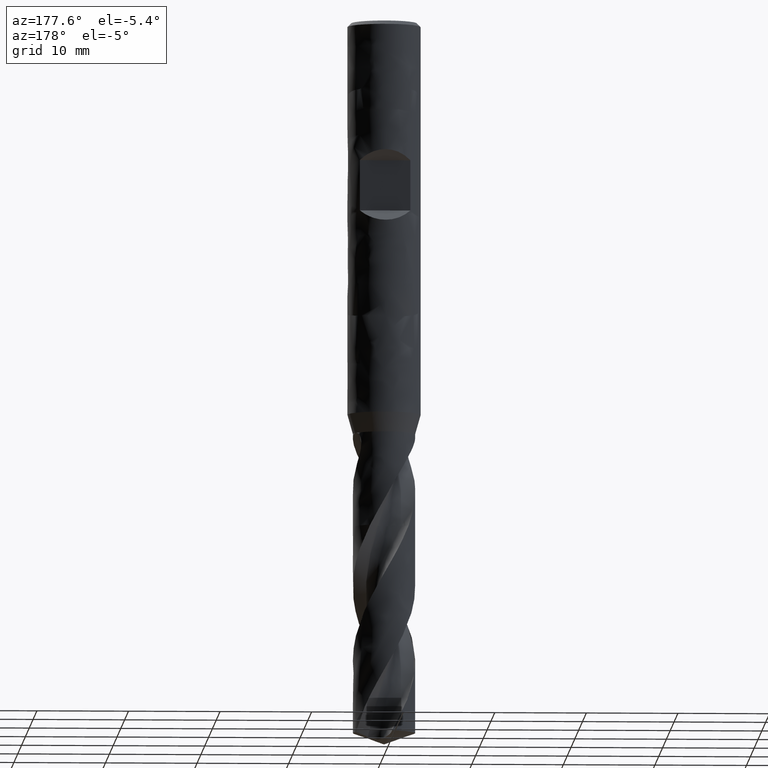
[diagram: clean part render]
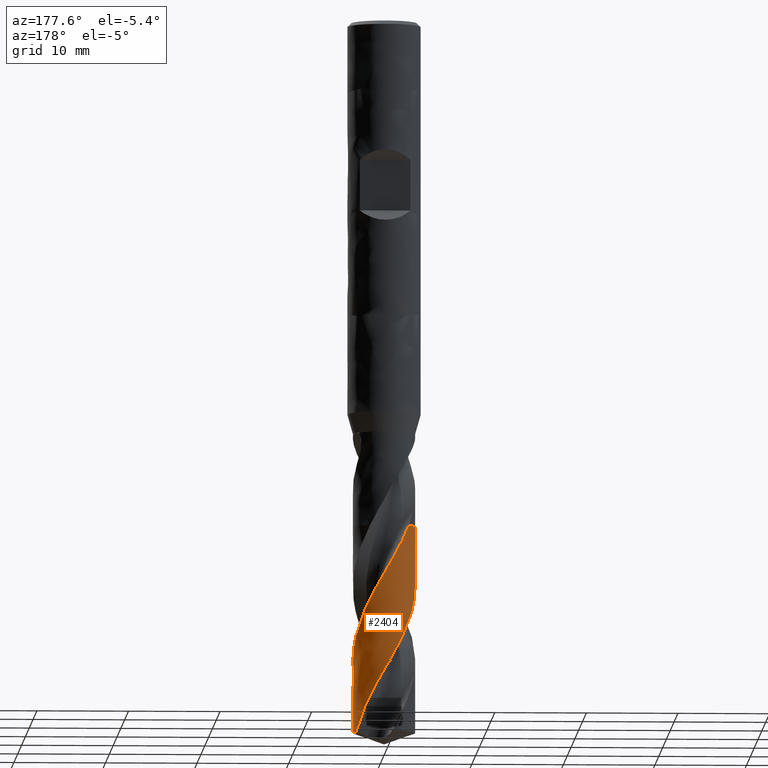
[diagram: same view with one face highlighted and labeled with its STEP entity id]
A machine part, auxiliary view. The second image highlights one B-rep face of the part: STEP entity #2404.
In plain terms, the highlighted face is a freeform B-spline surface patch.
Its self-contained STEP definition (entity closure, byte-faithful):
#1899 = VERTEX_POINT('', #1900);
#1900 = CARTESIAN_POINT('', (-3.4, 3.58821512150174E-15, -55.2));
#2005 = VERTEX_POINT('', #2006);
#2006 = CARTESIAN_POINT('', (-2.5948366004809, 2.19700318998511, -55.2));
#2076 = EDGE_CURVE('', #1899, #2005, #2077, .T.);
#2077 = CIRCLE('', #2078, 3.4);
#2078 = AXIS2_PLACEMENT_3D('', #2079, #2080, #2081);
#2079 = CARTESIAN_POINT('', (2.06966850007336E-31, 3.3800251656467E-15, -55.2));
#2080 = DIRECTION('', (3.74939945665464E-33, 6.12323399573677E-17, -1.));
#2081 = DIRECTION('', (-1., 6.12323399573677E-17, 0.));
#2093 = VERTEX_POINT('', #2094);
#2094 = CARTESIAN_POINT('', (-3.4, 3.97619611698886E-15, -61.5362105017911));
#2134 = EDGE_CURVE('', #2135, #2093, #2137, .T.);
#2135 = VERTEX_POINT('', #2136);
#2136 = CARTESIAN_POINT('', (3.1064099180173, 1.38210615411543, -77.7625012034949));
#2137 = B_SPLINE_CURVE_WITH_KNOTS('', 3, (#2138, #2139, #2140, #2141, #2142, #2143, #2144, #2145, #2146, #2147, #2148, #2149, #2150, #2151, #2152, #2153, #2154, #2155, #2156, #2157, #2158, #2159, #2160, #2161, #2162, #2163, #2164, #2165, #2166, #2167, #2168, #2169, #2170, #2171, #2172, #2173, #2174, #2175, #2176, #2177, #2178, #2179, #2180, #2181, #2182, #2183, #2184, #2185, #2186, #2187, #2188, #2189, #2190, #2191, #2192, #2193, #2194, #2195, #2196, #2197, #2198, #2199, #2200, #2201, #2202, #2203, #2204, #2205, #2206, #2207, #2208, #2209, #2210, #2211, #2212, #2213, #2214, #2215, #2216, #2217, #2218, #2219, #2220, #2221, #2222, #2223, #2224, #2225, #2226, #2227, #2228, #2229, #2230, #2231), .UNSPECIFIED., .F., .U., (4, 3, 3, 3, 3, 3, 3, 3, 3, 3, 3, 3, 3, 3, 3, 3, 3, 3, 3, 3, 3, 3, 3, 3, 3, 3, 3, 3, 3, 3, 3, 4), (0., 0.665660850593775, 1.33112510738442, 1.9963960021183, 2.66147587864301, 3.32636617980339, 3.99106742414364, 4.65557924434695, 5.31990037242203, 5.98402861825828, 6.64796082906768, 7.3116928290033, 7.75439502943726, 7.88570074054605, 7.94407962779482, 8.61065969756747, 9.27701310527935, 9.94314856492784, 10.6090733076717, 11.2747932472377, 11.9403131092594, 12.6056365308782, 13.2707661352571, 13.9357035843576, 14.6004496122965, 15.2650040407352, 15.9293657770223, 16.5935327989156, 17.2575021583176, 17.9212699087829, 18.5848310161772, 18.6799359911957), .UNSPECIFIED.);
#2138 = CARTESIAN_POINT('', (3.10640991801731, 1.38210615411542, -77.7625012034949));
#2139 = CARTESIAN_POINT('', (3.06183161597814, 1.48229996279684, -77.5696079834032));
#2140 = CARTESIAN_POINT('', (3.01238327933041, 1.58037263218199, -77.3766655642521));
#2141 = CARTESIAN_POINT('', (2.95832147716959, 1.67580847286233, -77.1837844077621));
#2142 = CARTESIAN_POINT('', (2.90427564142061, 1.77121612787597, -76.9909602160765));
#2143 = CARTESIAN_POINT('', (2.8455884951512, 1.86404248558441, -76.7980868116164));
#2144 = CARTESIAN_POINT('', (2.78256497221912, 1.95379942045728, -76.6052748044808));
#2145 = CARTESIAN_POINT('', (2.71955976185289, 2.04353027491282, -76.4125188221818));
#2146 = CARTESIAN_POINT('', (2.65218543106488, 2.13024374003034, -76.2197134118104));
#2147 = CARTESIAN_POINT('', (2.58079216804039, 2.21348408292931, -76.0269695434372));
#2148 = CARTESIAN_POINT('', (2.50941940405376, 2.29670052515659, -75.8342810173146));
#2149 = CARTESIAN_POINT('', (2.43399028822337, 2.37649215784475, -75.6415430116195));
#2150 = CARTESIAN_POINT('', (2.35489721939434, 2.45243941537581, -75.4488665565657));
#2151 = CARTESIAN_POINT('', (2.27582669537213, 2.5283650247868, -75.2562450222974));
#2152 = CARTESIAN_POINT('', (2.19305026456807, 2.60049072706229, -75.0635740448302));
#2153 = CARTESIAN_POINT('', (2.10699903966372, 2.66843681710027, -74.8709645514544));
#2154 = CARTESIAN_POINT('', (2.02097228281209, 2.73636358715163, -74.6784098252159));
#2155 = CARTESIAN_POINT('', (1.9316244484355, 2.80015111480684, -74.4858057611602));
#2156 = CARTESIAN_POINT('', (1.83942152201864, 2.85946296782012, -74.2932630489295));
#2157 = CARTESIAN_POINT('', (1.74724487125557, 2.91875791835779, -74.100775206819));
#2158 = CARTESIAN_POINT('', (1.65216276593215, 2.97361316236926, -73.9082381756776));
#2159 = CARTESIAN_POINT('', (1.55467184555884, 3.02373865481571, -73.7157623306546));
#2160 = CARTESIAN_POINT('', (1.45720890173993, 3.07384976296298, -73.5233417196055));
#2161 = CARTESIAN_POINT('', (1.35728305233256, 3.11926232912474, -73.3308720859043));
#2162 = CARTESIAN_POINT('', (1.25541701960612, 3.15973544887596, -73.138463463207));
#2163 = CARTESIAN_POINT('', (1.15358056316081, 3.20019681746405, -72.9461107053683));
#2164 = CARTESIAN_POINT('', (1.04974657035236, 3.23574481940343, -72.7537090797695));
#2165 = CARTESIAN_POINT('', (0.94445892982319, 3.26619003272582, -72.5613683108331));
#2166 = CARTESIAN_POINT('', (0.839202367727392, 3.29662625933781, -72.3690843163646));
#2167 = CARTESIAN_POINT('', (0.732432145456553, 3.3219802941041, -72.176751567795));
#2168 = CARTESIAN_POINT('', (0.624708087051406, 3.34211606710078, -71.9844795725125));
#2169 = CARTESIAN_POINT('', (0.517016513179331, 3.36224576809095, -71.7922655574629));
#2170 = CARTESIAN_POINT('', (0.40830918069043, 3.37717202900525, -71.6000028285237));
#2171 = CARTESIAN_POINT('', (0.299156337707267, 3.3868134707437, -71.407800833226));
#2172 = CARTESIAN_POINT('', (0.226352549767322, 3.39324421006828, -71.2796041420098));
#2173 = CARTESIAN_POINT('', (0.153327291185846, 3.39732746318454, -71.1513938110713));
#2174 = CARTESIAN_POINT('', (0.0802507996988821, 3.39905278116534, -71.0232025974283));
#2175 = CARTESIAN_POINT('', (0.0585762729614383, 3.39956451140778, -70.985181014412));
#2176 = CARTESIAN_POINT('', (0.0368961937599292, 3.39986893171991, -70.9471592408828));
#2177 = CARTESIAN_POINT('', (0.0152150366301777, 3.39996595610315, -70.9091381182799));
#2178 = CARTESIAN_POINT('', (0.0055755333914193, 3.40000909341592, -70.8922338205859));
#2179 = CARTESIAN_POINT('', (-0.00406425230930882, 3.40001123625907, -70.8753295296395));
#2180 = CARTESIAN_POINT('', (-0.013703926843714, 3.39997238259211, -70.8584253192377));
#2181 = CARTESIAN_POINT('', (-0.123771371198177, 3.39952874481052, -70.6654101680398));
#2182 = CARTESIAN_POINT('', (-0.233859507864194, 3.39373385365256, -70.4723451748769));
#2183 = CARTESIAN_POINT('', (-0.343386286615723, 3.38261523945079, -70.2793421985587));
#2184 = CARTESIAN_POINT('', (-0.452875822181462, 3.37150040599214, -70.0864048504439));
#2185 = CARTESIAN_POINT('', (-0.561866807061262, 3.35505914581792, -69.893417500651));
#2186 = CARTESIAN_POINT('', (-0.669783382635566, 3.33337519945557, -69.7004922887027));
#2187 = CARTESIAN_POINT('', (-0.777664661311285, 3.31169834538697, -69.5076301779195));
#2188 = CARTESIAN_POINT('', (-0.884533364065541, 3.28476995422193, -69.314717995213));
#2189 = CARTESIAN_POINT('', (-0.989824904818471, 3.25272910919449, -69.1218679867541));
#2190 = CARTESIAN_POINT('', (-1.09508313897103, 3.22069839956456, -68.9290789820389));
#2191 = CARTESIAN_POINT('', (-1.19882475787251, 3.18354034328834, -68.7362399100765));
#2192 = CARTESIAN_POINT('', (-1.30050148470655, 3.14144805595701, -68.5434629790839));
#2193 = CARTESIAN_POINT('', (-1.40214694116508, 3.09936871398371, -68.3507453360642));
#2194 = CARTESIAN_POINT('', (-1.50178640189643, 3.05233430632342, -68.157977689429));
#2195 = CARTESIAN_POINT('', (-1.5988928560285, 3.00059021443133, -67.9652720971625));
#2196 = CARTESIAN_POINT('', (-1.69597012548436, 2.9488616738698, -67.7726244212349));
#2197 = CARTESIAN_POINT('', (-1.79057121368545, 2.89239679216217, -67.5799268468451));
#2198 = CARTESIAN_POINT('', (-1.88219521150828, 2.83149098281724, -67.3872912047512));
#2199 = CARTESIAN_POINT('', (-1.97379216482639, 2.77060315093985, -67.1947124226029));
#2200 = CARTESIAN_POINT('', (-2.06246630543165, 2.70524207782772, -67.0020838697007));
#2201 = CARTESIAN_POINT('', (-2.14774749497664, 2.63575049991868, -66.809517110962));
#2202 = CARTESIAN_POINT('', (-2.23300384101809, 2.56627916579694, -66.6170064493882));
#2203 = CARTESIAN_POINT('', (-2.31491844081511, 2.4926395950828, -66.4244461467464));
#2204 = CARTESIAN_POINT('', (-2.39305637818993, 2.41521865900471, -66.23194750513));
#2205 = CARTESIAN_POINT('', (-2.47117174159269, 2.33782008975772, -66.0395044761788));
#2206 = CARTESIAN_POINT('', (-2.54555801555446, 2.2565973423914, -65.8470119155429));
#2207 = CARTESIAN_POINT('', (-2.61581968431555, 2.17197775751671, -65.6545809105788));
#2208 = CARTESIAN_POINT('', (-2.6860611262564, 2.08738253279688, -65.4622053023541));
#2209 = CARTESIAN_POINT('', (-2.75222133303045, 1.99934303634025, -65.2697802274339));
#2210 = CARTESIAN_POINT('', (-2.81394803473436, 1.90832294379506, -65.0774166552561));
#2211 = CARTESIAN_POINT('', (-2.87565694497402, 1.81732908593725, -64.8851085279592));
#2212 = CARTESIAN_POINT('', (-2.93297096242149, 1.72330317774639, -64.6927509285373));
#2213 = CARTESIAN_POINT('', (-2.98558451254, 1.62674064265983, -64.5004548579668));
#2214 = CARTESIAN_POINT('', (-3.03818280699585, 1.530206106548, -64.3082145449716));
#2215 = CARTESIAN_POINT('', (-3.08611398688788, 1.43108022241581, -64.1159246589198));
#2216 = CARTESIAN_POINT('', (-3.12912215481455, 1.32988516054913, -63.9236964296508));
#2217 = CARTESIAN_POINT('', (-3.17211771769659, 1.22871975742714, -63.7315245395734));
#2218 = CARTESIAN_POINT('', (-3.21021798828816, 1.12542799140658, -63.5393029127692));
#2219 = CARTESIAN_POINT('', (-3.2432191099923, 1.02055367550215, -63.347143092874));
#2220 = CARTESIAN_POINT('', (-3.27621041024533, 0.91571057120245, -63.1550404615888));
#2221 = CARTESIAN_POINT('', (-3.30412450098908, 0.809225809701026, -62.9628879725936));
#2222 = CARTESIAN_POINT('', (-3.32681130661358, 0.701659839372683, -62.7707973839741));
#2223 = CARTESIAN_POINT('', (-3.34949122357268, 0.59412653058301, -62.5787651221114));
#2224 = CARTESIAN_POINT('', (-3.36695996255426, 0.485451354113163, -62.386682949999));
#2225 = CARTESIAN_POINT('', (-3.37912249140341, 0.376206310543512, -62.1946627060765));
#2226 = CARTESIAN_POINT('', (-3.39128123383433, 0.266995276958937, -62.0027022415765));
#2227 = CARTESIAN_POINT('', (-3.39814398947359, 0.157152528569606, -61.8106918731783));
#2228 = CARTESIAN_POINT('', (-3.39967157703927, 0.0472564098712073, -61.6187434051552));
#2229 = CARTESIAN_POINT('', (-3.39989051870968, 0.031505535525232, -61.5912323680363));
#2230 = CARTESIAN_POINT('', (-3.4, 0.0157528276524735, -61.5637212917184));
#2231 = CARTESIAN_POINT('', (-3.4, 3.54273208842916E-15, -61.5362105017911));
#2391 = EDGE_CURVE('', #1899, #2093, #2392, .T.);
#2392 = LINE('', #2393, #2394);
#2393 = CARTESIAN_POINT('', (-3.4, 3.58821512150174E-15, -55.2));
#2394 = VECTOR('', #2395, 6.33621050179107);
#2395 = DIRECTION('', (0., 3.87980995487115E-16, -6.33621050179107));
#2404 = ADVANCED_FACE('', (#2405), #2567, .T.);
#2405 = FACE_OUTER_BOUND('', #2406, .T.);
#2406 = EDGE_LOOP('', (#2407, #2408, #2426, #2546, #2558, #2565, #2566));
#2407 = ORIENTED_EDGE('', *, *, #2076, .T.);
#2408 = ORIENTED_EDGE('', *, *, #2409, .T.);
#2409 = EDGE_CURVE('', #2005, #2410, #2412, .T.);
#2410 = VERTEX_POINT('', #2411);
#2411 = CARTESIAN_POINT('', (-1.87108266375298, 2.83884653783946, -56.8851368251366));
#2412 = B_SPLINE_CURVE_WITH_KNOTS('', 3, (#2413, #2414, #2415, #2416, #2417, #2418, #2419, #2420, #2421, #2422, #2423, #2424, #2425), .UNSPECIFIED., .F., .U., (4, 3, 3, 3, 4), (4.111886611985, 4.63316963323046, 5.29811036083241, 5.96285269902851, 6.05639502507479), .UNSPECIFIED.);
#2413 = CARTESIAN_POINT('', (-2.5948366004809, 2.19700318998511, -55.2));
#2414 = CARTESIAN_POINT('', (-2.53877048965558, 2.26322175401785, -55.3505476023604));
#2415 = CARTESIAN_POINT('', (-2.48016059422177, 2.32730044493621, -55.5011559742758));
#2416 = CARTESIAN_POINT('', (-2.41921206573172, 2.38901925086804, -55.6517180991656));
#2417 = CARTESIAN_POINT('', (-2.341467045793, 2.46774682504642, -55.8437728655655));
#2418 = CARTESIAN_POINT('', (-2.25985633225443, 2.54269283708498, -56.0358886827877));
#2419 = CARTESIAN_POINT('', (-2.1748243471054, 2.61345347370822, -56.2279559787141));
#2420 = CARTESIAN_POINT('', (-2.08981773180412, 2.6841929984337, -56.4199659701093));
#2421 = CARTESIAN_POINT('', (-2.00134241162865, 2.75079112333219, -56.6120416575551));
#2422 = CARTESIAN_POINT('', (-1.90987465769216, 2.8128950908104, -56.8040697518856));
#2423 = CARTESIAN_POINT('', (-1.89700334504994, 2.82163434095412, -56.8310918829848));
#2424 = CARTESIAN_POINT('', (-1.88407222531323, 2.83028512279952, -56.858114349041));
#2425 = CARTESIAN_POINT('', (-1.871082663753, 2.83884653783944, -56.8851368251366));
#2426 = ORIENTED_EDGE('', *, *, #2427, .T.);
#2427 = EDGE_CURVE('', #2410, #2428, #2430, .T.);
#2428 = VERTEX_POINT('', #2429);
#2429 = CARTESIAN_POINT('', (1.37929536291788, -3.10765897450692, -76.564015484619));
#2430 = B_SPLINE_CURVE_WITH_KNOTS('', 3, (#2431, #2432, #2433, #2434, #2435, #2436, #2437, #2438, #2439, #2440, #2441, #2442, #2443, #2444, #2445, #2446, #2447, #2448, #2449, #2450, #2451, #2452, #2453, #2454, #2455, #2456, #2457, #2458, #2459, #2460, #2461, #2462, #2463, #2464, #2465, #2466, #2467, #2468, #2469, #2470, #2471, #2472, #2473, #2474, #2475, #2476, #2477, #2478, #2479, #2480, #2481, #2482, #2483, #2484, #2485, #2486, #2487, #2488, #2489, #2490, #2491, #2492, #2493, #2494, #2495, #2496, #2497, #2498, #2499, #2500, #2501, #2502, #2503, #2504, #2505, #2506, #2507, #2508, #2509, #2510, #2511, #2512, #2513, #2514, #2515, #2516, #2517, #2518, #2519, #2520, #2521, #2522, #2523, #2524, #2525, #2526, #2527, #2528, #2529, #2530, #2531, #2532, #2533, #2534, #2535, #2536, #2537, #2538, #2539, #2540, #2541, #2542, #2543, #2544, #2545), .UNSPECIFIED., .F., .U., (4, 3, 3, 3, 3, 3, 3, 3, 3, 3, 3, 3, 3, 3, 3, 3, 3, 3, 3, 3, 3, 3, 3, 3, 3, 3, 3, 3, 3, 3, 3, 3, 3, 3, 3, 3, 3, 3, 4), (0., 0.664517569612129, 1.32883934064411, 1.99296424585513, 2.65688979629493, 3.32061257264089, 3.7633103220963, 3.96022043690759, 3.99914309254175, 4.66574649248883, 5.33211673485312, 5.99826354100053, 6.66419504285603, 7.32991796793358, 7.99543780864122, 8.6607589842641, 9.3258848698914, 9.99081785500437, 10.6555593869496, 11.3201099958687, 11.984469302121, 12.648636006513, 13.3126078629495, 13.9763816324021, 14.6399530162831, 14.7275037392374, 14.8151085398668, 15.4816662083509, 16.1479965204634, 16.8141087930603, 17.4800108279027, 18.1457091073211, 18.811208935305, 19.4765145277111, 20.1416290940811, 20.8065548998648, 21.4712933000924, 22.1358447868642, 22.6618337397321), .UNSPECIFIED.);
#2431 = CARTESIAN_POINT('', (-1.87108266375298, 2.83884653783946, -56.8851368251366));
#2432 = CARTESIAN_POINT('', (-1.77880580638621, 2.89966617912094, -57.0771024400505));
#2433 = CARTESIAN_POINT('', (-1.68354761538601, 2.95598939816568, -57.2691349320367));
#2434 = CARTESIAN_POINT('', (-1.58582066690146, 3.00751937856238, -57.4611217783064));
#2435 = CARTESIAN_POINT('', (-1.48812251343847, 3.05903417576836, -57.6530520560914));
#2436 = CARTESIAN_POINT('', (-1.38789875452359, 3.10578934538316, -57.8450494571969));
#2437 = CARTESIAN_POINT('', (-1.28568683640835, 3.14754020763617, -58.0370013374905));
#2438 = CARTESIAN_POINT('', (-1.18350520788176, 3.1892786973942, -58.2288963345595));
#2439 = CARTESIAN_POINT('', (-1.07927577150082, 3.2260407265314, -58.4208583672021));
#2440 = CARTESIAN_POINT('', (-0.973555723651048, 3.2576355310173, -58.6127747980981));
#2441 = CARTESIAN_POINT('', (-0.867867410488211, 3.28922085148149, -58.804633620168));
#2442 = CARTESIAN_POINT('', (-0.760627187683645, 3.31566067476134, -58.9965595173379));
#2443 = CARTESIAN_POINT('', (-0.652406469280312, 3.33681971326612, -59.1884397685674));
#2444 = CARTESIAN_POINT('', (-0.544218803315, 3.35797228944261, -59.3802614163225));
#2445 = CARTESIAN_POINT('', (-0.434988267554942, 3.37385965916352, -59.572150186932));
#2446 = CARTESIAN_POINT('', (-0.325294913164686, 3.38440293397071, -59.7639932333328));
#2447 = CARTESIAN_POINT('', (-0.252130328718563, 3.39143521340329, -59.8919510011193));
#2448 = CARTESIAN_POINT('', (-0.178736748865084, 3.39609382001814, -60.0199304466262));
#2449 = CARTESIAN_POINT('', (-0.105286892264187, 3.39836941345661, -60.1478977860058));
#2450 = CARTESIAN_POINT('', (-0.0726167020182501, 3.3993815879386, -60.2048171254882));
#2451 = CARTESIAN_POINT('', (-0.0399326450043072, 3.39992257827349, -60.2617388352074));
#2452 = CARTESIAN_POINT('', (-0.0072500879754861, 3.39999227002421, -60.3186600319984));
#2453 = CARTESIAN_POINT('', (-0.000789820996842516, 3.40000604579198, -60.3299114811334));
#2454 = CARTESIAN_POINT('', (0.00567042694165672, 3.40000140879631, -60.3411629788093));
#2455 = CARTESIAN_POINT('', (0.0121305374149537, 3.39997836023438, -60.3524145026298));
#2456 = CARTESIAN_POINT('', (0.122768712929242, 3.39958362227272, -60.5451121464856));
#2457 = CARTESIAN_POINT('', (0.233400492563626, 3.39378208641527, -60.7378778357734));
#2458 = CARTESIAN_POINT('', (0.34343607146731, 3.3826101851699, -60.9305970710476));
#2459 = CARTESIAN_POINT('', (0.453433163274169, 3.37144219151559, -61.1232488989983));
#2460 = CARTESIAN_POINT('', (0.562897536472964, 3.35490120983615, -61.3159686774151));
#2461 = CARTESIAN_POINT('', (0.671247118775862, 3.33308075292777, -61.5086420974192));
#2462 = CARTESIAN_POINT('', (0.779560371093968, 3.31126761249307, -61.7012509133678));
#2463 = CARTESIAN_POINT('', (0.886821588525641, 3.28416606185512, -61.8939274942884));
#2464 = CARTESIAN_POINT('', (0.992461560891834, 3.2519255911157, -62.0865579124197));
#2465 = CARTESIAN_POINT('', (1.09806738952389, 3.21969554076959, -62.2791260707678));
#2466 = CARTESIAN_POINT('', (1.2021137586953, 3.18231135352303, -62.4717616919648));
#2467 = CARTESIAN_POINT('', (1.30404924011117, 3.13997700299953, -62.6643514715228));
#2468 = CARTESIAN_POINT('', (1.40595279425791, 3.09765591204162, -62.8568809299284));
#2469 = CARTESIAN_POINT('', (1.50580605351483, 3.05036312779989, -63.0494774348212));
#2470 = CARTESIAN_POINT('', (1.6030801901745, 2.9983551997504, -63.2420285168713));
#2471 = CARTESIAN_POINT('', (1.70032465254174, 2.94636313715618, -63.4345208595965));
#2472 = CARTESIAN_POINT('', (1.79504890219951, 2.8896281423757, -63.6270798458647));
#2473 = CARTESIAN_POINT('', (1.8867518115233, 2.82845675266807, -63.8195937402841));
#2474 = CARTESIAN_POINT('', (1.97842734650731, 2.76730362330157, -64.0120501671618));
#2475 = CARTESIAN_POINT('', (2.06713777253462, 2.70168045247622, -64.2045730028046));
#2476 = CARTESIAN_POINT('', (2.1524147946498, 2.63194045369052, -64.3970509165012));
#2477 = CARTESIAN_POINT('', (2.23766678562231, 2.56222092550542, -64.5894723326561));
#2478 = CARTESIAN_POINT('', (2.31953795005916, 2.48834566789784, -64.7819600634775));
#2479 = CARTESIAN_POINT('', (2.39759746112727, 2.41071076954413, -64.9744029154092));
#2480 = CARTESIAN_POINT('', (2.47563433329325, 2.33309838694593, -65.1667899548609));
#2481 = CARTESIAN_POINT('', (2.54990772114334, 2.251682885108, -65.3592433145748));
#2482 = CARTESIAN_POINT('', (2.62002834502317, 2.16689904501228, -65.551651752187));
#2483 = CARTESIAN_POINT('', (2.69012877917582, 2.08213961660184, -65.7440047899232));
#2484 = CARTESIAN_POINT('', (2.75611967231602, 1.99396448324539, -65.9364242132771));
#2485 = CARTESIAN_POINT('', (2.81765680589743, 1.90284264304223, -66.1287986245895));
#2486 = CARTESIAN_POINT('', (2.87917626515701, 1.81174697430066, -66.3211177832917));
#2487 = CARTESIAN_POINT('', (2.93627989302535, 1.71765399239258, -66.5135034137978));
#2488 = CARTESIAN_POINT('', (2.98867148579788, 1.62106222890385, -66.7058439341461));
#2489 = CARTESIAN_POINT('', (3.0410479967222, 1.52449827106558, -66.8981290858679));
#2490 = CARTESIAN_POINT('', (3.08874490969673, 1.42538225189687, -67.0904807784347));
#2491 = CARTESIAN_POINT('', (3.13151644628547, 1.32423742079872, -67.2827872921638));
#2492 = CARTESIAN_POINT('', (3.17427558314195, 1.22312191221094, -67.4750380550485));
#2493 = CARTESIAN_POINT('', (3.21213620223746, 1.11992209069449, -67.6673553735983));
#2494 = CARTESIAN_POINT('', (3.24490484445883, 1.01518104316802, -67.8596275107931));
#2495 = CARTESIAN_POINT('', (3.27766387327606, 0.910470723738598, -68.0518432407146));
#2496 = CARTESIAN_POINT('', (3.30535217786681, 0.804161773917093, -68.2441254506722));
#2497 = CARTESIAN_POINT('', (3.32783003103336, 0.696812230484388, -68.4363625788111));
#2498 = CARTESIAN_POINT('', (3.35030117823776, 0.58949471332972, -68.6285423556143));
#2499 = CARTESIAN_POINT('', (3.36757750188788, 0.481077469989085, -68.8207884109415));
#2500 = CARTESIAN_POINT('', (3.37957397854627, 0.372128638421233, -69.0129896211479));
#2501 = CARTESIAN_POINT('', (3.39156679746176, 0.263213025507932, -69.2051322289305));
#2502 = CARTESIAN_POINT('', (3.39828971053444, 0.15370499986459, -69.3973407531503));
#2503 = CARTESIAN_POINT('', (3.39971297347727, 0.0441780258831831, -69.5895048404829));
#2504 = CARTESIAN_POINT('', (3.39990075689082, 0.0297271830831423, -69.6148587137518));
#2505 = CARTESIAN_POINT('', (3.39999639810257, 0.0152753748260929, -69.6402128866075));
#2506 = CARTESIAN_POINT('', (3.39999990016685, 0.000823932882895344, -69.6655671135427));
#2507 = CARTESIAN_POINT('', (3.40000340439427, -0.0136364353187719, -69.6909370010869));
#2508 = CARTESIAN_POINT('', (3.39991465565867, -0.0280965809694882, -69.7163071959151));
#2509 = CARTESIAN_POINT('', (3.39973367446464, -0.0425551725545614, -69.7416774507423));
#2510 = CARTESIAN_POINT('', (3.39835664487417, -0.15256609692476, -69.9347118253994));
#2511 = CARTESIAN_POINT('', (3.39163357368671, -0.262521747602881, -70.1278132093125));
#2512 = CARTESIAN_POINT('', (3.37960534203388, -0.371843693097071, -70.3208691684726));
#2513 = CARTESIAN_POINT('', (3.36758121309449, -0.481128349933372, -70.5138592781129));
#2514 = CARTESIAN_POINT('', (3.35024883379045, -0.589840759765379, -70.7069161674659));
#2515 = CARTESIAN_POINT('', (3.32770481245089, -0.697409980709576, -70.8999278979976));
#2516 = CARTESIAN_POINT('', (3.30516816806447, -0.804944002383392, -71.0928764703878));
#2517 = CARTESIAN_POINT('', (3.27741057816311, -0.911396184968123, -71.2858914381785));
#2518 = CARTESIAN_POINT('', (3.24458343000171, -1.0162078359072, -71.4788616791898));
#2519 = CARTESIAN_POINT('', (3.21176664271521, -1.12098640628756, -71.6717710151076));
#2520 = CARTESIAN_POINT('', (3.17386466253631, -1.22418554077518, -71.8647462522435));
#2521 = CARTESIAN_POINT('', (3.13108225005857, -1.32526372596873, -72.0576772447864));
#2522 = CARTESIAN_POINT('', (3.08831292831809, -1.42631098284641, -72.2505492035164));
#2523 = CARTESIAN_POINT('', (3.04064124433277, -1.525297432766, -72.4434866622381));
#2524 = CARTESIAN_POINT('', (2.98832320832093, -1.62170416618156, -72.6363802088615));
#2525 = CARTESIAN_POINT('', (2.93602076884827, -1.71808215976836, -72.8292162519548));
#2526 = CARTESIAN_POINT('', (2.87904410899269, -1.8119384580137, -73.0221175919984));
#2527 = CARTESIAN_POINT('', (2.81769767372663, -1.90278212611837, -73.2149751694589));
#2528 = CARTESIAN_POINT('', (2.75636914328909, -1.99359928020814, -73.407776458696));
#2529 = CARTESIAN_POINT('', (2.69063757756683, -2.08145864262251, -73.6006429946559));
#2530 = CARTESIAN_POINT('', (2.62085252957223, -2.16590212572841, -73.7934657798537));
#2531 = CARTESIAN_POINT('', (2.55108751862715, -2.25032136297789, -73.9862332007606));
#2532 = CARTESIAN_POINT('', (2.47723101141828, -2.33137555997099, -74.1790659264346));
#2533 = CARTESIAN_POINT('', (2.39967392553345, -2.40864381989427, -74.3718548197104));
#2534 = CARTESIAN_POINT('', (2.32213885047463, -2.48589015096081, -74.5645889991876));
#2535 = CARTESIAN_POINT('', (2.24086108848569, -2.55939680230807, -74.7573886041857));
#2536 = CARTESIAN_POINT('', (2.15626885961208, -2.62878386427397, -74.9501442471959));
#2537 = CARTESIAN_POINT('', (2.07170047257699, -2.69815136989115, -75.1428455631245));
#2538 = CARTESIAN_POINT('', (1.98377203988889, -2.76344058773329, -75.3356124458858));
#2539 = CARTESIAN_POINT('', (1.89294478518735, -2.82431585348239, -75.528335231008));
#2540 = CARTESIAN_POINT('', (1.80214306960926, -2.88517400211251, -75.7210038256671));
#2541 = CARTESIAN_POINT('', (1.70839401434594, -2.9416543433429, -75.9137381017232));
#2542 = CARTESIAN_POINT('', (1.61218741244573, -2.99346818041407, -76.1064281876469));
#2543 = CARTESIAN_POINT('', (1.53604040081493, -3.03447855575387, -76.2589413616304));
#2544 = CARTESIAN_POINT('', (1.4583252567152, -3.07258254979599, -76.4114887432907));
#2545 = CARTESIAN_POINT('', (1.37929536291788, -3.10765897450692, -76.564015484619));
#2546 = ORIENTED_EDGE('', *, *, #2547, .T.);
#2547 = EDGE_CURVE('', #2428, #2548, #2550, .T.);
#2548 = VERTEX_POINT('', #2549);
#2549 = CARTESIAN_POINT('', (0.735242269594184, -3.31955099448735, -77.7625012034949));
#2550 = B_SPLINE_CURVE_WITH_KNOTS('', 3, (#2551, #2552, #2553, #2554, #2555, #2556, #2557), .UNSPECIFIED., .F., .U., (4, 3, 4), (0., 0.664217823928504, 1.37741003725832), .UNSPECIFIED.);
#2551 = CARTESIAN_POINT('', (1.37929536291788, -3.10765897450692, -76.564015484619));
#2552 = CARTESIAN_POINT('', (1.27949656715015, -3.15195341522787, -76.7566259561196));
#2553 = CARTESIAN_POINT('', (1.17754782223988, -3.19144109976527, -76.9492994811097));
#2554 = CARTESIAN_POINT('', (1.07397998895701, -3.22592110618336, -77.141927163216));
#2555 = CARTESIAN_POINT('', (0.96277584840577, -3.26294340701158, -77.3487577510155));
#2556 = CARTESIAN_POINT('', (0.849642097569728, -3.29421275166427, -77.5556520882113));
#2557 = CARTESIAN_POINT('', (0.735242269594184, -3.31955099448735, -77.7625012034949));
#2558 = ORIENTED_EDGE('', *, *, #2559, .F.);
#2559 = EDGE_CURVE('', #2135, #2548, #2560, .T.);
#2560 = CIRCLE('', #2561, 3.39999999999999);
#2561 = AXIS2_PLACEMENT_3D('', #2562, #2563, #2564);
#2562 = CARTESIAN_POINT('', (2.9156267976049E-31, 4.76157990962761E-15, -77.7625012034949));
#2563 = DIRECTION('', (3.74939945665464E-33, 6.12323399573677E-17, -1.));
#2564 = DIRECTION('', (-1., 6.12323399573677E-17, 0.));
#2565 = ORIENTED_EDGE('', *, *, #2134, .T.);
#2566 = ORIENTED_EDGE('', *, *, #2391, .F.);
#2567 = (
   BOUNDED_SURFACE ()
   B_SPLINE_SURFACE (2, 1, ((#2568, #2569), (#2570, #2571), (#2572, #2573), (#2574, #2575), (#2576, #2577), (#2578, #2579), (#2580, #2581)), .UNSPECIFIED., .F., .F., .U.)
   B_SPLINE_SURFACE_WITH_KNOTS ((3, 2, 2, 3), (2, 2), (0., 5.34070751110265, 10.6814150222053, 15.2315282362044), (0.311331541406, 1.), .UNSPECIFIED.)
   GEOMETRIC_REPRESENTATION_ITEM ()
   RATIONAL_B_SPLINE_SURFACE (((1., 1.), (0.707106781186548, 0.707106781186548), (1., 1.), (0.707106781186548, 0.707106781186548), (1., 1.), (0.750464277917614, 0.750464277917614), (0.926121579063514, 0.926121579063514)))
   REPRESENTATION_ITEM ('')
   SURFACE ()
);
#2568 = CARTESIAN_POINT('', (-3.4, 3.58821512150174E-15, -55.2));
#2569 = CARTESIAN_POINT('', (-3.4, 4.96976986548266E-15, -77.7625012034949));
#2570 = CARTESIAN_POINT('', (-3.4, 3.4, -55.2));
#2571 = CARTESIAN_POINT('', (-3.4, 3.4, -77.7625012034949));
#2572 = CARTESIAN_POINT('', (2.2186712959341E-31, 3.4, -55.2));
#2573 = CARTESIAN_POINT('', (3.20474742746036E-31, 3.4, -77.7625012034949));
#2574 = CARTESIAN_POINT('', (3.4, 3.4, -55.2));
#2575 = CARTESIAN_POINT('', (3.4, 3.40000000000001, -77.7625012034949));
#2576 = CARTESIAN_POINT('', (3.4, 3.58821512150174E-15, -55.2));
#2577 = CARTESIAN_POINT('', (3.4, 4.96976986548266E-15, -77.7625012034949));
#2578 = CARTESIAN_POINT('', (3.4, -2.729337882872, -55.2));
#2579 = CARTESIAN_POINT('', (3.4, -2.729337882872, -77.7625012034949));
#2580 = CARTESIAN_POINT('', (0.735242269594184, -3.31955099448735, -55.2));
#2581 = CARTESIAN_POINT('', (0.735242269594184, -3.31955099448735, -77.7625012034949));